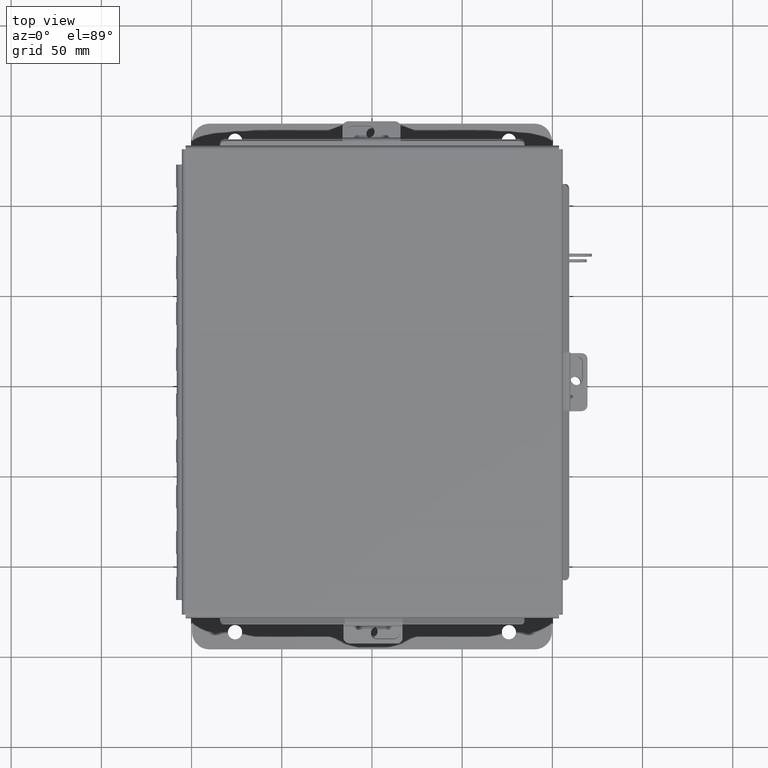
[diagram: clean part render]
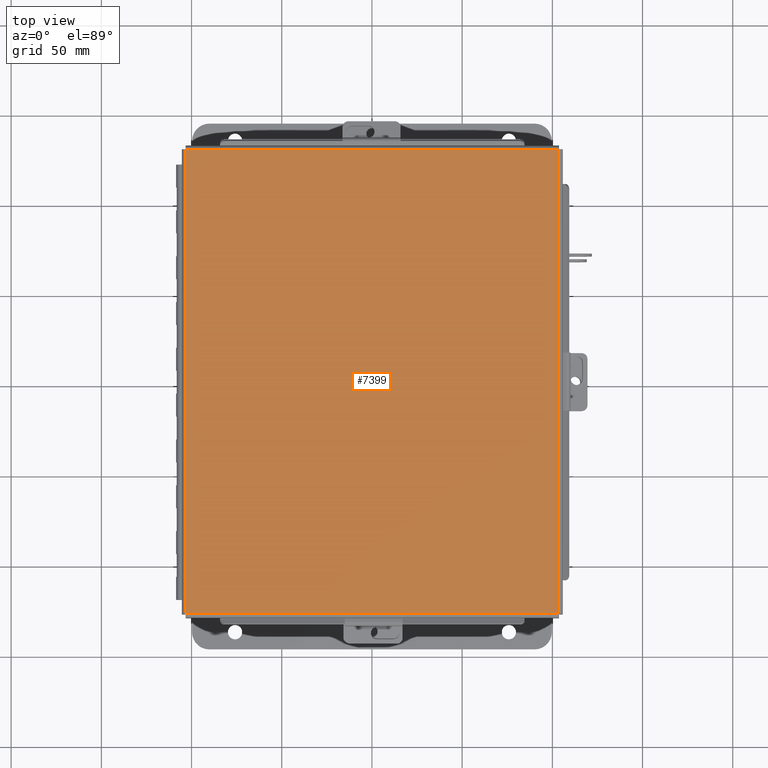
[diagram: same view with one face highlighted and labeled with its STEP entity id]
A machine part, top view. The second image highlights one B-rep face of the part: STEP entity #7399.
In plain terms, the highlighted planar face has unit normal (-0, -0, 1).
Its self-contained STEP definition (entity closure, byte-faithful):
#292 = CARTESIAN_POINT ( 'NONE',  ( -4.074478932188135600, 5.068549999999998300, -0.07469999999999993300 ) ) ;
#605 = DIRECTION ( 'NONE',  ( -1.000000000000000000, 0.0000000000000000000, -0.0000000000000000000 ) ) ;
#908 = AXIS2_PLACEMENT_3D ( 'NONE', #13300, #8224, #605 ) ;
#1537 = EDGE_CURVE ( 'NONE', #8473, #9415, #2899, .T. ) ;
#1588 = DIRECTION ( 'NONE',  ( 1.000000000000000000, 0.0000000000000000000, 0.0000000000000000000 ) ) ;
#1968 = CARTESIAN_POINT ( 'NONE',  ( 4.068550000000000100, 5.068549999999998300, -0.07470000000000022500 ) ) ;
#2442 = CARTESIAN_POINT ( 'NONE',  ( 4.068550000000001000, -5.068550000000001000, -0.07469999999999993300 ) ) ;
#2838 = CARTESIAN_POINT ( 'NONE',  ( -4.068550000000000100, 5.068549999999998300, -0.07469999999999993300 ) ) ;
#2899 = LINE ( 'NONE', #7293, #12671 ) ;
#3341 = DIRECTION ( 'NONE',  ( -0.0000000000000000000, 1.000000000000000000, -0.0000000000000000000 ) ) ;
#3744 = FACE_OUTER_BOUND ( 'NONE', #4675, .T. ) ;
#4019 = EDGE_CURVE ( 'NONE', #9415, #6555, #5323, .T. ) ;
#4258 = VERTEX_POINT ( 'NONE', #1968 ) ;
#4675 = EDGE_LOOP ( 'NONE', ( #15142, #7892, #7458, #10836 ) ) ;
#5189 = EDGE_CURVE ( 'NONE', #4258, #8473, #6133, .T. ) ;
#5323 = LINE ( 'NONE', #6887, #11717 ) ;
#6133 = LINE ( 'NONE', #14311, #15908 ) ;
#6555 = VERTEX_POINT ( 'NONE', #2838 ) ;
#6887 = CARTESIAN_POINT ( 'NONE',  ( -4.068549999999999200, -5.074478932188135600, -0.07469999999999994700 ) ) ;
#7122 = LINE ( 'NONE', #292, #16480 ) ;
#7293 = CARTESIAN_POINT ( 'NONE',  ( 4.074478932188136500, -5.068550000000001000, -0.07469999999999993300 ) ) ;
#7399 = ADVANCED_FACE ( 'NONE', ( #3744 ), #14606, .T. ) ;
#7458 = ORIENTED_EDGE ( 'NONE', *, *, #1537, .T. ) ;
#7892 = ORIENTED_EDGE ( 'NONE', *, *, #5189, .T. ) ;
#7926 = EDGE_CURVE ( 'NONE', #6555, #4258, #7122, .T. ) ;
#8224 = DIRECTION ( 'NONE',  ( 0.0000000000000000000, 0.0000000000000000000, -1.000000000000000000 ) ) ;
#8473 = VERTEX_POINT ( 'NONE', #2442 ) ;
#9415 = VERTEX_POINT ( 'NONE', #12743 ) ;
#10734 = DIRECTION ( 'NONE',  ( -1.000000000000000000, 0.0000000000000000000, 0.0000000000000000000 ) ) ;
#10836 = ORIENTED_EDGE ( 'NONE', *, *, #4019, .T. ) ;
#11007 = DIRECTION ( 'NONE',  ( -0.0000000000000000000, -1.000000000000000000, -0.0000000000000000000 ) ) ;
#11717 = VECTOR ( 'NONE', #3341, 39.37007874015748100 ) ;
#12671 = VECTOR ( 'NONE', #10734, 39.37007874015748100 ) ;
#12743 = CARTESIAN_POINT ( 'NONE',  ( -4.068549999999999200, -5.068550000000001000, -0.07469999999999994700 ) ) ;
#13300 = CARTESIAN_POINT ( 'NONE',  ( 0.0000000000000000000, 0.0000000000000000000, -0.07470000000000000300 ) ) ;
#14311 = CARTESIAN_POINT ( 'NONE',  ( 4.068550000000000100, 5.074478932188133800, -0.07470000000000022500 ) ) ;
#14606 = PLANE ( 'NONE',  #908 ) ;
#15142 = ORIENTED_EDGE ( 'NONE', *, *, #7926, .T. ) ;
#15908 = VECTOR ( 'NONE', #11007, 39.37007874015748100 ) ;
#16480 = VECTOR ( 'NONE', #1588, 39.37007874015748100 ) ;